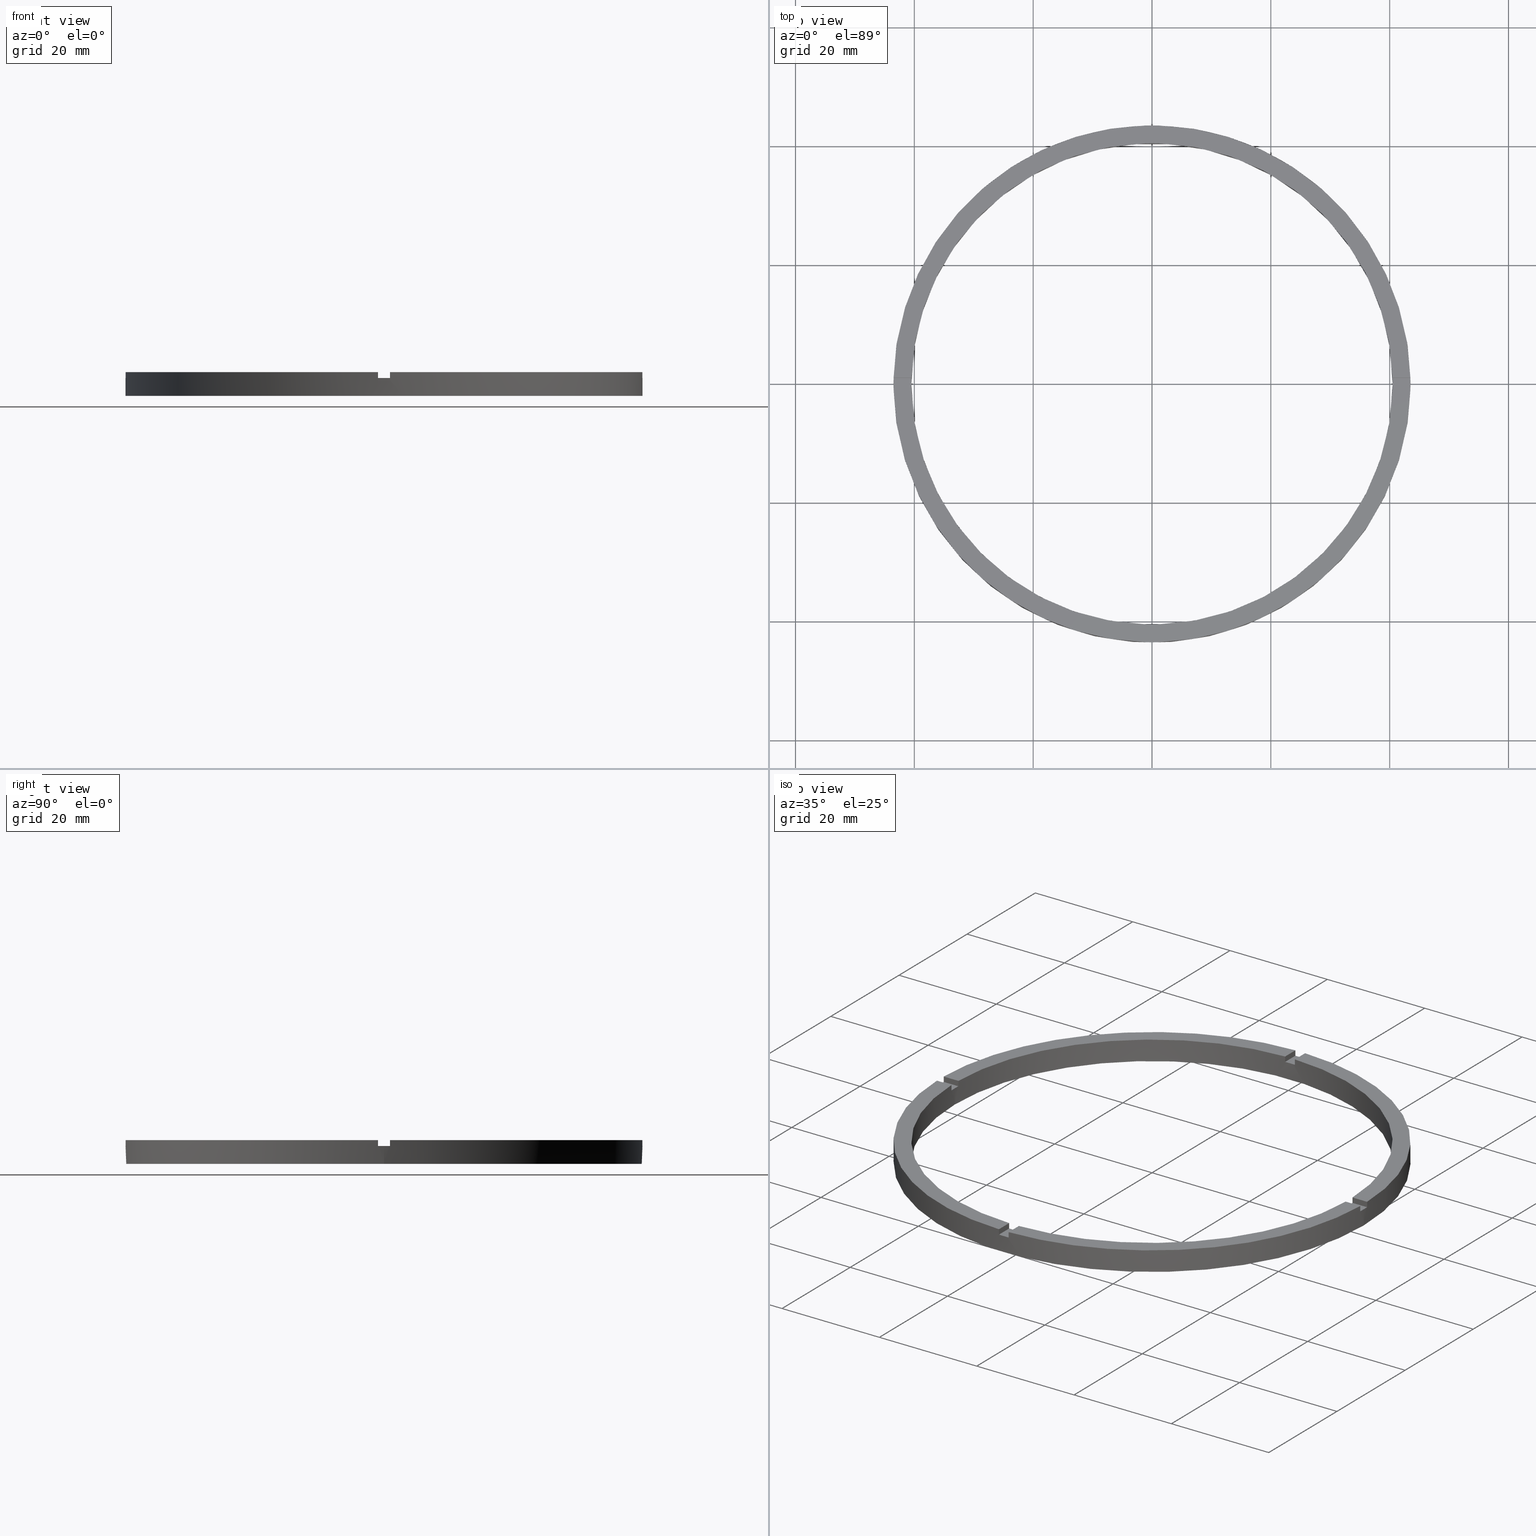
[diagram: canonical four-view strip — front | top / right | iso, engineering-drawing reading convention]
A machine part, canonical four-view strip (front | top / right | iso — engineering-drawing reading convention). The complete STEP part file that produces these views, byte-faithful:
ISO-10303-21;
HEADER;
FILE_DESCRIPTION (( 'STEP AP203' ),
    '1' );
FILE_NAME ('514179.step',
    '2024-12-26T02:45:15',
    ( 'MSI' ),
    ( '' ),
    'SwSTEP 2.0',
    'SolidWorks 2020',
    '' );
FILE_SCHEMA (( 'CONFIG_CONTROL_DESIGN' ));
ENDSEC;

DATA;
#1 = CC_DESIGN_APPROVAL ( #304, ( #555 ) ) ;
#2 = VERTEX_POINT ( 'NONE', #388 ) ;
#3 = ORIENTED_EDGE ( 'NONE', *, *, #82, .F. ) ;
#4 = LOCAL_TIME ( 10, 45, 15.00000000000000000, #266 ) ;
#5 = LOCAL_TIME ( 10, 45, 15.00000000000000000, #243 ) ;
#6 = VERTEX_POINT ( 'NONE', #143 ) ;
#7 = EDGE_CURVE ( 'NONE', #213, #342, #202, .T. ) ;
#8 = EDGE_CURVE ( 'NONE', #460, #293, #193, .T. ) ;
#9 = ORIENTED_EDGE ( 'NONE', *, *, #112, .F. ) ;
#10 = AXIS2_PLACEMENT_3D ( 'NONE', #207, #527, #290 ) ;
#11 = PERSON_AND_ORGANIZATION ( #338, #17 ) ;
#12 = ORIENTED_EDGE ( 'NONE', *, *, #82, .T. ) ;
#13 = CIRCLE ( 'NONE', #350, 40.50000000000000000 ) ;
#14 = DATE_AND_TIME ( #533, #5 ) ;
#15 = ORIENTED_EDGE ( 'NONE', *, *, #713, .T. ) ;
#16 = ORIENTED_EDGE ( 'NONE', *, *, #672, .F. ) ;
#17 = ORGANIZATION ( 'δָ��', 'δָ��', '' ) ;
#18 = PRODUCT_DEFINITION ( 'δ֪', '', #704, #421 ) ;
#19 = LINE ( 'NONE', #666, #296 ) ;
#20 = CALENDAR_DATE ( 2024, 26, 12 ) ;
#21 = EDGE_CURVE ( 'NONE', #297, #394, #732, .T. ) ;
#22 = FACE_OUTER_BOUND ( 'NONE', #509, .T. ) ;
#23 = LINE ( 'NONE', #88, #279 ) ;
#24 = ORIENTED_EDGE ( 'NONE', *, *, #254, .F. ) ;
#25 = EDGE_CURVE ( 'NONE', #331, #570, #468, .T. ) ;
#26 = CARTESIAN_POINT ( 'NONE',  ( 43.48850422812905947, -1.000000000000156319, 4.000000000000000000 ) ) ;
#27 = DIRECTION ( 'NONE',  ( 1.301042606982605074E-16, -1.000000000000000000, 0.000000000000000000 ) ) ;
#28 = LINE ( 'NONE', #451, #541 ) ;
#29 = ORIENTED_EDGE ( 'NONE', *, *, #283, .T. ) ;
#30 = LINE ( 'NONE', #151, #547 ) ;
#31 = VECTOR ( 'NONE', #110, 1000.000000000000000 ) ;
#32 = DIRECTION ( 'NONE',  ( 1.000000000000000000, 0.000000000000000000, 0.000000000000000000 ) ) ;
#33 = DIRECTION ( 'NONE',  ( 1.000000000000000000, 0.000000000000000000, -0.000000000000000000 ) ) ;
#34 = VECTOR ( 'NONE', #358, 1000.000000000000000 ) ;
#35 = ORIENTED_EDGE ( 'NONE', *, *, #722, .F. ) ;
#36 = EDGE_LOOP ( 'NONE', ( #754, #714, #237, #267 ) ) ;
#37 = ORIENTED_EDGE ( 'NONE', *, *, #123, .T. ) ;
#38 = LINE ( 'NONE', #408, #31 ) ;
#39 = APPROVAL_STATUS ( 'not_yet_approved' ) ;
#40 = ORIENTED_EDGE ( 'NONE', *, *, #159, .T. ) ;
#41 = FACE_OUTER_BOUND ( 'NONE', #768, .T. ) ;
#42 = CIRCLE ( 'NONE', #397, 40.50000000000000000 ) ;
#43 = ORIENTED_EDGE ( 'NONE', *, *, #747, .F. ) ;
#44 = LINE ( 'NONE', #294, #309 ) ;
#45 = VECTOR ( 'NONE', #404, 1000.000000000000000 ) ;
#46 = ORIENTED_EDGE ( 'NONE', *, *, #102, .T. ) ;
#47 = LINE ( 'NONE', #614, #303 ) ;
#48 = APPROVAL_STATUS ( 'not_yet_approved' ) ;
#49 = EDGE_CURVE ( 'NONE', #248, #311, #463, .T. ) ;
#50 = CARTESIAN_POINT ( 'NONE',  ( -1.000000000000159650, -33.50000000000017764, 3.000000000000000000 ) ) ;
#51 = LINE ( 'NONE', #149, #571 ) ;
#52 = LINE ( 'NONE', #623, #569 ) ;
#53 = ADVANCED_FACE ( 'NONE', ( #198 ), #552, .T. ) ;
#54 = CIRCLE ( 'NONE', #364, 43.50000000000000000 ) ;
#55 = LINE ( 'NONE', #407, #78 ) ;
#56 = CARTESIAN_POINT ( 'NONE',  ( 0.000000000000000000, 0.000000000000000000, 3.000000000000000000 ) ) ;
#57 = CC_DESIGN_PERSON_AND_ORGANIZATION_ASSIGNMENT ( #269, #433, ( #704 ) ) ;
#58 = ORIENTED_EDGE ( 'NONE', *, *, #676, .T. ) ;
#59 = VERTEX_POINT ( 'NONE', #438 ) ;
#60 = LINE ( 'NONE', #462, #598 ) ;
#61 = ORIENTED_EDGE ( 'NONE', *, *, #69, .F. ) ;
#62 = LINE ( 'NONE', #586, #314 ) ;
#63 = VECTOR ( 'NONE', #423, 1000.000000000000000 ) ;
#64 = CARTESIAN_POINT ( 'NONE',  ( -43.50000000000000000, 0.000000000000000000, 0.000000000000000000 ) ) ;
#65 = CARTESIAN_POINT ( 'NONE',  ( -40.50000000000000000, 0.000000000000000000, 4.000000000000000000 ) ) ;
#66 = EDGE_CURVE ( 'NONE', #324, #610, #42, .T. ) ;
#67 = ORIENTED_EDGE ( 'NONE', *, *, #283, .F. ) ;
#68 = FACE_BOUND ( 'NONE', #700, .T. ) ;
#69 = EDGE_CURVE ( 'NONE', #59, #343, #38, .T. ) ;
#70 =( NAMED_UNIT ( * ) PLANE_ANGLE_UNIT ( ) SI_UNIT ( $, .RADIAN. ) );
#71 = LINE ( 'NONE', #445, #74 ) ;
#72 = VECTOR ( 'NONE', #135, 1000.000000000000000 ) ;
#73 = DIRECTION ( 'NONE',  ( 0.000000000000000000, 0.000000000000000000, 1.000000000000000000 ) ) ;
#74 = VECTOR ( 'NONE', #738, 1000.000000000000000 ) ;
#75 = DIRECTION ( 'NONE',  ( 0.000000000000000000, 0.000000000000000000, 1.000000000000000000 ) ) ;
#76 = LINE ( 'NONE', #160, #596 ) ;
#77 = PLANE ( 'NONE',  #655 ) ;
#78 = VECTOR ( 'NONE', #302, 1000.000000000000000 ) ;
#79 = PERSON_AND_ORGANIZATION_ROLE ( 'classification_officer' ) ;
#80 = VECTOR ( 'NONE', #702, 1000.000000000000000 ) ;
#81 = VECTOR ( 'NONE', #674, 1000.000000000000000 ) ;
#82 = EDGE_CURVE ( 'NONE', #248, #213, #19, .T. ) ;
#83 = LINE ( 'NONE', #26, #81 ) ;
#84 = CIRCLE ( 'NONE', #425, 40.50000000000000000 ) ;
#85 = PLANE ( 'NONE',  #677 ) ;
#86 = LINE ( 'NONE', #532, #584 ) ;
#87 = CARTESIAN_POINT ( 'NONE',  ( 0.9999999999999740208, 43.48850422812906658, 4.000000000000000000 ) ) ;
#88 = CARTESIAN_POINT ( 'NONE',  ( -1.000000000000158762, -40.48765243873741326, 4.000000000000000000 ) ) ;
#89 = FACE_OUTER_BOUND ( 'NONE', #341, .T. ) ;
#90 = EDGE_LOOP ( 'NONE', ( #769, #229, #226, #492 ) ) ;
#91 = VERTEX_POINT ( 'NONE', #359 ) ;
#92 = ORIENTED_EDGE ( 'NONE', *, *, #549, .T. ) ;
#93 = DIRECTION ( 'NONE',  ( 1.000000000000000000, 0.000000000000000000, 0.000000000000000000 ) ) ;
#94 = ORIENTED_EDGE ( 'NONE', *, *, #499, .F. ) ;
#95 = AXIS2_PLACEMENT_3D ( 'NONE', #634, #733, #32 ) ;
#96 = AXIS2_PLACEMENT_3D ( 'NONE', #139, #698, #646 ) ;
#97 = EDGE_CURVE ( 'NONE', #91, #688, #573, .T. ) ;
#98 = DIRECTION ( 'NONE',  ( -0.000000000000000000, -0.000000000000000000, -1.000000000000000000 ) ) ;
#99 = ADVANCED_FACE ( 'NONE', ( #22 ), #510, .T. ) ;
#100 = APPROVAL ( #48, 'δָ��' ) ;
#101 = CARTESIAN_POINT ( 'NONE',  ( -40.48765243873742037, 0.9999999999999711342, 4.000000000000000000 ) ) ;
#102 = EDGE_CURVE ( 'NONE', #59, #454, #564, .T. ) ;
#103 = AXIS2_PLACEMENT_3D ( 'NONE', #546, #515, #161 ) ;
#104 = CARTESIAN_POINT ( 'NONE',  ( 0.9999999999998412381, -40.48765243873742037, 4.000000000000000000 ) ) ;
#105 = CARTESIAN_POINT ( 'NONE',  ( 0.000000000000000000, 0.000000000000000000, 4.000000000000000000 ) ) ;
#106 = CARTESIAN_POINT ( 'NONE',  ( -1.000000000000025979, 43.48850422812906658, 4.000000000000000000 ) ) ;
#107 = AXIS2_PLACEMENT_3D ( 'NONE', #199, #641, #286 ) ;
#108 = CARTESIAN_POINT ( 'NONE',  ( -43.48850422812906658, -1.000000000000029532, 3.000000000000000000 ) ) ;
#109 = MECHANICAL_CONTEXT ( 'NONE', #272, 'mechanical' ) ;
#110 = DIRECTION ( 'NONE',  ( 0.000000000000000000, 0.000000000000000000, 1.000000000000000000 ) ) ;
#111 = CARTESIAN_POINT ( 'NONE',  ( 33.49999999999998579, 0.9999999999998430145, 3.000000000000000000 ) ) ;
#112 = EDGE_CURVE ( 'NONE', #2, #465, #52, .T. ) ;
#113 = CARTESIAN_POINT ( 'NONE',  ( -40.48765243873742037, 0.9999999999999711342, 4.000000000000000000 ) ) ;
#114 = DIRECTION ( 'NONE',  ( -0.000000000000000000, -0.000000000000000000, -1.000000000000000000 ) ) ;
#115 = CARTESIAN_POINT ( 'NONE',  ( 0.000000000000000000, 0.000000000000000000, 4.000000000000000000 ) ) ;
#116 = CARTESIAN_POINT ( 'NONE',  ( -33.50000000000018474, 0.9999999999999724665, 3.000000000000000000 ) ) ;
#117 = AXIS2_PLACEMENT_3D ( 'NONE', #495, #355, #514 ) ;
#118 = DIRECTION ( 'NONE',  ( 1.000000000000000000, 0.000000000000000000, -0.000000000000000000 ) ) ;
#119 = EDGE_CURVE ( 'NONE', #681, #736, #51, .T. ) ;
#120 = ADVANCED_FACE ( 'NONE', ( #550 ), #662, .F. ) ;
#121 = CARTESIAN_POINT ( 'NONE',  ( -1.000000000000025979, 33.49999999999999289, 3.000000000000000000 ) ) ;
#122 = DIRECTION ( 'NONE',  ( 0.000000000000000000, 0.000000000000000000, 1.000000000000000000 ) ) ;
#123 = EDGE_CURVE ( 'NONE', #752, #420, #54, .T. ) ;
#124 = LINE ( 'NONE', #581, #126 ) ;
#125 = DIRECTION ( 'NONE',  ( 1.000000000000000000, 0.000000000000000000, 0.000000000000000000 ) ) ;
#126 = VECTOR ( 'NONE', #344, 1000.000000000000000 ) ;
#127 = AXIS2_PLACEMENT_3D ( 'NONE', #779, #289, #118 ) ;
#128 = PLANE ( 'NONE',  #127 ) ;
#129 = EDGE_CURVE ( 'NONE', #297, #554, #544, .T. ) ;
#130 = ADVANCED_FACE ( 'NONE', ( #277 ), #156, .T. ) ;
#131 = VERTEX_POINT ( 'NONE', #543 ) ;
#132 = AXIS2_PLACEMENT_3D ( 'NONE', #351, #383, #493 ) ;
#133 = EDGE_LOOP ( 'NONE', ( #215, #234, #770, #251 ) ) ;
#134 = EDGE_CURVE ( 'NONE', #752, #194, #28, .T. ) ;
#135 = DIRECTION ( 'NONE',  ( -1.000000000000000000, -6.505213034913025371E-17, -0.000000000000000000 ) ) ;
#136 = EDGE_CURVE ( 'NONE', #324, #155, #23, .T. ) ;
#137 = AXIS2_PLACEMENT_3D ( 'NONE', #624, #705, #374 ) ;
#138 = DIRECTION ( 'NONE',  ( 0.000000000000000000, 0.000000000000000000, 1.000000000000000000 ) ) ;
#139 = CARTESIAN_POINT ( 'NONE',  ( 0.000000000000000000, 0.000000000000000000, 4.000000000000000000 ) ) ;
#140 = ADVANCED_FACE ( 'NONE', ( #542 ), #312, .F. ) ;
#141 = DIRECTION ( 'NONE',  ( 0.000000000000000000, -0.000000000000000000, 1.000000000000000000 ) ) ;
#142 = CC_DESIGN_APPROVAL ( #100, ( #704 ) ) ;
#143 = CARTESIAN_POINT ( 'NONE',  ( 0.9999999999998412381, -40.48765243873742037, 4.000000000000000000 ) ) ;
#144 = EDGE_CURVE ( 'NONE', #394, #494, #592, .T. ) ;
#145 = APPROVAL_ROLE ( '' ) ;
#146 = DIRECTION ( 'NONE',  ( -1.000000000000000000, -1.951563910473907735E-16, 0.000000000000000000 ) ) ;
#147 = FACE_OUTER_BOUND ( 'NONE', #36, .T. ) ;
#148 = EDGE_LOOP ( 'NONE', ( #521, #259, #3, #513 ) ) ;
#149 = CARTESIAN_POINT ( 'NONE',  ( 43.50000000000000000, 5.327213576290986044E-15, 4.000000000000000000 ) ) ;
#150 = CARTESIAN_POINT ( 'NONE',  ( 43.50000000000000000, 5.327213576290986044E-15, 3.000000000000000000 ) ) ;
#151 = CARTESIAN_POINT ( 'NONE',  ( 40.48765243873741326, -1.000000000000156541, 4.000000000000000000 ) ) ;
#152 = PLANE ( 'NONE',  #268 ) ;
#153 = DIRECTION ( 'NONE',  ( 1.000000000000000000, 0.000000000000000000, 0.000000000000000000 ) ) ;
#154 = CARTESIAN_POINT ( 'NONE',  ( -33.50000000000018474, -1.000000000000027534, 3.000000000000000000 ) ) ;
#155 = VERTEX_POINT ( 'NONE', #372 ) ;
#156 = PLANE ( 'NONE',  #637 ) ;
#157 = VERTEX_POINT ( 'NONE', #411 ) ;
#158 = DIRECTION ( 'NONE',  ( -0.000000000000000000, -0.000000000000000000, -1.000000000000000000 ) ) ;
#159 = EDGE_CURVE ( 'NONE', #331, #291, #60, .T. ) ;
#160 = CARTESIAN_POINT ( 'NONE',  ( -43.48850422812906658, 0.9999999999999705791, 4.000000000000000000 ) ) ;
#161 = DIRECTION ( 'NONE',  ( 1.000000000000000000, 6.505213034913025371E-17, 0.000000000000000000 ) ) ;
#162 = CC_DESIGN_PERSON_AND_ORGANIZATION_ASSIGNMENT ( #11, #600, ( #558 ) ) ;
#163 = CARTESIAN_POINT ( 'NONE',  ( 0.000000000000000000, 0.000000000000000000, 4.000000000000000000 ) ) ;
#164 = AXIS2_PLACEMENT_3D ( 'NONE', #422, #587, #683 ) ;
#165 = AXIS2_PLACEMENT_3D ( 'NONE', #203, #288, #620 ) ;
#166 = ORIENTED_EDGE ( 'NONE', *, *, #205, .T. ) ;
#167 = ORIENTED_EDGE ( 'NONE', *, *, #426, .T. ) ;
#168 = VERTEX_POINT ( 'NONE', #665 ) ;
#169 = EDGE_CURVE ( 'NONE', #695, #420, #55, .T. ) ;
#170 = ADVANCED_FACE ( 'NONE', ( #332 ), #401, .F. ) ;
#171 = ORIENTED_EDGE ( 'NONE', *, *, #308, .F. ) ;
#172 = EDGE_LOOP ( 'NONE', ( #257, #588, #721, #37 ) ) ;
#173 = ORIENTED_EDGE ( 'NONE', *, *, #136, .F. ) ;
#174 = ORIENTED_EDGE ( 'NONE', *, *, #129, .T. ) ;
#175 = ADVANCED_FACE ( 'NONE', ( #579 ), #396, .F. ) ;
#176 = ORIENTED_EDGE ( 'NONE', *, *, #123, .F. ) ;
#177 = ORIENTED_EDGE ( 'NONE', *, *, #353, .T. ) ;
#178 = DIRECTION ( 'NONE',  ( -0.000000000000000000, -0.000000000000000000, -1.000000000000000000 ) ) ;
#179 = VECTOR ( 'NONE', #363, 1000.000000000000000 ) ;
#180 = PLANE ( 'NONE',  #236 ) ;
#181 = ORIENTED_EDGE ( 'NONE', *, *, #375, .T. ) ;
#182 = CIRCLE ( 'NONE', #551, 43.50000000000000000 ) ;
#183 = CARTESIAN_POINT ( 'NONE',  ( 0.9999999999999740208, 33.49999999999999289, 4.000000000000000000 ) ) ;
#184 = ORIENTED_EDGE ( 'NONE', *, *, #653, .T. ) ;
#185 = LINE ( 'NONE', #696, #179 ) ;
#186 = AXIS2_PLACEMENT_3D ( 'NONE', #502, #354, #280 ) ;
#187 = ORIENTED_EDGE ( 'NONE', *, *, #21, .F. ) ;
#188 = ORIENTED_EDGE ( 'NONE', *, *, #255, .T. ) ;
#189 = CARTESIAN_POINT ( 'NONE',  ( 0.000000000000000000, 0.000000000000000000, 3.000000000000000000 ) ) ;
#190 = CARTESIAN_POINT ( 'NONE',  ( -1.000000000000158318, -43.48850422812905947, 3.000000000000000000 ) ) ;
#191 = LINE ( 'NONE', #313, #725 ) ;
#192 = PLANE ( 'NONE',  #376 ) ;
#193 = LINE ( 'NONE', #577, #730 ) ;
#194 = VERTEX_POINT ( 'NONE', #108 ) ;
#195 =( GEOMETRIC_REPRESENTATION_CONTEXT ( 3 ) GLOBAL_UNCERTAINTY_ASSIGNED_CONTEXT ( ( #633 ) ) GLOBAL_UNIT_ASSIGNED_CONTEXT ( ( #607, #70, #613 ) ) REPRESENTATION_CONTEXT ( 'NONE', 'WORKASPACE' ) );
#196 = PLANE ( 'NONE',  #742 ) ;
#197 = ADVANCED_FACE ( 'NONE', ( #89 ), #152, .T. ) ;
#198 = FACE_OUTER_BOUND ( 'NONE', #503, .T. ) ;
#199 = CARTESIAN_POINT ( 'NONE',  ( -33.50000000000018474, 0.9999999999999724665, 3.000000000000000000 ) ) ;
#200 = DIRECTION ( 'NONE',  ( 0.000000000000000000, 0.000000000000000000, 1.000000000000000000 ) ) ;
#201 = DIRECTION ( 'NONE',  ( 0.000000000000000000, 0.000000000000000000, 1.000000000000000000 ) ) ;
#202 = LINE ( 'NONE', #428, #467 ) ;
#203 = CARTESIAN_POINT ( 'NONE',  ( 0.000000000000000000, 0.000000000000000000, 3.000000000000000000 ) ) ;
#204 = VECTOR ( 'NONE', #675, 1000.000000000000000 ) ;
#205 = EDGE_CURVE ( 'NONE', #454, #766, #595, .T. ) ;
#206 = EDGE_CURVE ( 'NONE', #498, #225, #62, .T. ) ;
#207 = CARTESIAN_POINT ( 'NONE',  ( 0.000000000000000000, 0.000000000000000000, 4.000000000000000000 ) ) ;
#208 = DIRECTION ( 'NONE',  ( 1.000000000000000000, 0.000000000000000000, 0.000000000000000000 ) ) ;
#209 = DIRECTION ( 'NONE',  ( -6.505213034913025371E-17, 1.000000000000000000, 0.000000000000000000 ) ) ;
#210 = APPROVAL_ROLE ( '' ) ;
#211 = ORIENTED_EDGE ( 'NONE', *, *, #487, .T. ) ;
#212 = CC_DESIGN_SECURITY_CLASSIFICATION ( #555, ( #704 ) ) ;
#213 = VERTEX_POINT ( 'NONE', #517 ) ;
#214 = CARTESIAN_POINT ( 'NONE',  ( -43.50000000000000000, 0.000000000000000000, 4.000000000000000000 ) ) ;
#215 = ORIENTED_EDGE ( 'NONE', *, *, #102, .F. ) ;
#216 = CARTESIAN_POINT ( 'NONE',  ( 0.000000000000000000, 0.000000000000000000, 4.000000000000000000 ) ) ;
#217 = ORIENTED_EDGE ( 'NONE', *, *, #129, .F. ) ;
#218 = AXIS2_PLACEMENT_3D ( 'NONE', #346, #529, #381 ) ;
#219 = ORIENTED_EDGE ( 'NONE', *, *, #654, .F. ) ;
#220 = ORIENTED_EDGE ( 'NONE', *, *, #66, .F. ) ;
#221 = CARTESIAN_POINT ( 'NONE',  ( 0.000000000000000000, 0.000000000000000000, 3.000000000000000000 ) ) ;
#222 = DIRECTION ( 'NONE',  ( -1.000000000000000000, 0.000000000000000000, 0.000000000000000000 ) ) ;
#223 = DIRECTION ( 'NONE',  ( -1.000000000000000000, -6.505213034913025371E-17, -0.000000000000000000 ) ) ;
#224 = ORIENTED_EDGE ( 'NONE', *, *, #664, .T. ) ;
#225 = VERTEX_POINT ( 'NONE', #432 ) ;
#226 = ORIENTED_EDGE ( 'NONE', *, *, #144, .T. ) ;
#227 = DIRECTION ( 'NONE',  ( -1.301042606982605074E-16, 1.000000000000000000, 0.000000000000000000 ) ) ;
#228 = ORIENTED_EDGE ( 'NONE', *, *, #630, .T. ) ;
#229 = ORIENTED_EDGE ( 'NONE', *, *, #21, .T. ) ;
#230 = DIRECTION ( 'NONE',  ( 1.000000000000000000, 0.000000000000000000, 0.000000000000000000 ) ) ;
#231 = ORIENTED_EDGE ( 'NONE', *, *, #713, .F. ) ;
#232 = ORIENTED_EDGE ( 'NONE', *, *, #134, .F. ) ;
#233 = ORIENTED_EDGE ( 'NONE', *, *, #653, .F. ) ;
#234 = ORIENTED_EDGE ( 'NONE', *, *, #69, .T. ) ;
#235 = DATE_AND_TIME ( #20, #538 ) ;
#236 = AXIS2_PLACEMENT_3D ( 'NONE', #384, #735, #33 ) ;
#237 = ORIENTED_EDGE ( 'NONE', *, *, #393, .T. ) ;
#238 = DIRECTION ( 'NONE',  ( 1.000000000000000000, 0.000000000000000000, 0.000000000000000000 ) ) ;
#239 = ADVANCED_FACE ( 'NONE', ( #583 ), #604, .F. ) ;
#240 = PERSON_AND_ORGANIZATION ( #338, #17 ) ;
#241 = CLOSED_SHELL ( 'NONE', ( #719, #562, #336, #379, #782, #130, #671, #53, #140, #442, #175, #197, #385, #640, #476, #120, #365, #99, #239, #170, #663 ) ) ;
#242 = ORIENTED_EDGE ( 'NONE', *, *, #712, .T. ) ;
#243 = COORDINATED_UNIVERSAL_TIME_OFFSET ( 8, 0, .AHEAD. ) ;
#244 = EDGE_LOOP ( 'NONE', ( #12, #274, #43, #316 ) ) ;
#245 = ORIENTED_EDGE ( 'NONE', *, *, #574, .T. ) ;
#246 = PERSON_AND_ORGANIZATION ( #338, #17 ) ;
#247 = APPROVAL_PERSON_ORGANIZATION ( #240, #100, #145 ) ;
#248 = VERTEX_POINT ( 'NONE', #693 ) ;
#249 = LOCAL_TIME ( 10, 45, 15.00000000000000000, #505 ) ;
#250 = PERSON_AND_ORGANIZATION ( #338, #17 ) ;
#251 = ORIENTED_EDGE ( 'NONE', *, *, #255, .F. ) ;
#252 = EDGE_CURVE ( 'NONE', #752, #460, #334, .T. ) ;
#253 = ORIENTED_EDGE ( 'NONE', *, *, #49, .T. ) ;
#254 = EDGE_CURVE ( 'NONE', #554, #688, #602, .T. ) ;
#255 = EDGE_CURVE ( 'NONE', #454, #523, #71, .T. ) ;
#256 = ORIENTED_EDGE ( 'NONE', *, *, #630, .F. ) ;
#257 = ORIENTED_EDGE ( 'NONE', *, *, #393, .F. ) ;
#258 = PERSON_AND_ORGANIZATION ( #338, #17 ) ;
#259 = ORIENTED_EDGE ( 'NONE', *, *, #406, .F. ) ;
#260 = DATE_TIME_ROLE ( 'classification_date' ) ;
#261 = DATE_AND_TIME ( #773, #249 ) ;
#262 = EDGE_LOOP ( 'NONE', ( #475, #184, #231, #703 ) ) ;
#263 = CARTESIAN_POINT ( 'NONE',  ( 0.000000000000000000, 0.000000000000000000, 3.000000000000000000 ) ) ;
#264 = APPROVAL_PERSON_ORGANIZATION ( #246, #673, #210 ) ;
#265 = ORIENTED_EDGE ( 'NONE', *, *, #574, .F. ) ;
#266 = COORDINATED_UNIVERSAL_TIME_OFFSET ( 8, 0, .AHEAD. ) ;
#267 = ORIENTED_EDGE ( 'NONE', *, *, #169, .F. ) ;
#268 = AXIS2_PLACEMENT_3D ( 'NONE', #189, #138, #278 ) ;
#269 = PERSON_AND_ORGANIZATION ( #338, #17 ) ;
#270 = ORIENTED_EDGE ( 'NONE', *, *, #672, .T. ) ;
#271 = EDGE_CURVE ( 'NONE', #248, #523, #590, .T. ) ;
#272 = APPLICATION_CONTEXT ( 'configuration controlled 3d designs of mechanical parts and assemblies' ) ;
#273 = DATE_AND_TIME ( #491, #776 ) ;
#274 = ORIENTED_EDGE ( 'NONE', *, *, #7, .T. ) ;
#275 = CALENDAR_DATE ( 2024, 26, 12 ) ;
#276 = LINE ( 'NONE', #121, #34 ) ;
#277 = FACE_OUTER_BOUND ( 'NONE', #172, .T. ) ;
#278 = DIRECTION ( 'NONE',  ( 1.000000000000000000, 0.000000000000000000, -0.000000000000000000 ) ) ;
#279 = VECTOR ( 'NONE', #122, 1000.000000000000000 ) ;
#280 = DIRECTION ( 'NONE',  ( -1.000000000000000000, 0.000000000000000000, 0.000000000000000000 ) ) ;
#281 = AXIS2_PLACEMENT_3D ( 'NONE', #352, #520, #762 ) ;
#282 = CARTESIAN_POINT ( 'NONE',  ( 0.9999999999999740208, 43.48850422812906658, 3.000000000000000000 ) ) ;
#283 = EDGE_CURVE ( 'NONE', #682, #494, #328, .T. ) ;
#284 = DIRECTION ( 'NONE',  ( -0.000000000000000000, -0.000000000000000000, -1.000000000000000000 ) ) ;
#285 = CYLINDRICAL_SURFACE ( 'NONE', #10, 43.50000000000000000 ) ;
#286 = DIRECTION ( 'NONE',  ( -1.000000000000000000, -1.951563910473907735E-16, 0.000000000000000000 ) ) ;
#287 = CARTESIAN_POINT ( 'NONE',  ( -43.48850422812906658, -1.000000000000029532, 4.000000000000000000 ) ) ;
#288 = DIRECTION ( 'NONE',  ( 0.000000000000000000, 0.000000000000000000, 1.000000000000000000 ) ) ;
#289 = DIRECTION ( 'NONE',  ( 0.000000000000000000, 0.000000000000000000, 1.000000000000000000 ) ) ;
#290 = DIRECTION ( 'NONE',  ( -1.000000000000000000, 0.000000000000000000, 0.000000000000000000 ) ) ;
#291 = VERTEX_POINT ( 'NONE', #322 ) ;
#292 = PERSON_AND_ORGANIZATION_ROLE ( 'creator' ) ;
#293 = VERTEX_POINT ( 'NONE', #377 ) ;
#294 = CARTESIAN_POINT ( 'NONE',  ( 33.49999999999998579, -1.000000000000156986, 4.000000000000000000 ) ) ;
#295 = ORIENTED_EDGE ( 'NONE', *, *, #701, .F. ) ;
#296 = VECTOR ( 'NONE', #223, 1000.000000000000000 ) ;
#297 = VERTEX_POINT ( 'NONE', #414 ) ;
#298 = CIRCLE ( 'NONE', #488, 43.50000000000000000 ) ;
#299 = VECTOR ( 'NONE', #362, 1000.000000000000000 ) ;
#300 = DIRECTION ( 'NONE',  ( 1.000000000000000000, 0.000000000000000000, -0.000000000000000000 ) ) ;
#301 = VECTOR ( 'NONE', #356, 1000.000000000000000 ) ;
#302 = DIRECTION ( 'NONE',  ( 0.000000000000000000, 0.000000000000000000, 1.000000000000000000 ) ) ;
#303 = VECTOR ( 'NONE', #647, 1000.000000000000000 ) ;
#304 = APPROVAL ( #347, 'δָ��' ) ;
#305 = CARTESIAN_POINT ( 'NONE',  ( 0.000000000000000000, 0.000000000000000000, 4.000000000000000000 ) ) ;
#306 = VECTOR ( 'NONE', #650, 1000.000000000000000 ) ;
#307 = CARTESIAN_POINT ( 'NONE',  ( 40.48765243873741326, -1.000000000000156541, 3.000000000000000000 ) ) ;
#308 = EDGE_CURVE ( 'NONE', #775, #342, #84, .T. ) ;
#309 = VECTOR ( 'NONE', #692, 1000.000000000000000 ) ;
#310 = CARTESIAN_POINT ( 'NONE',  ( -33.50000000000018474, 0.9999999999999724665, 4.000000000000000000 ) ) ;
#311 = VERTEX_POINT ( 'NONE', #628 ) ;
#312 = CYLINDRICAL_SURFACE ( 'NONE', #618, 40.50000000000000000 ) ;
#313 = CARTESIAN_POINT ( 'NONE',  ( -1.000000000000159650, -33.50000000000017764, 4.000000000000000000 ) ) ;
#314 = VECTOR ( 'NONE', #638, 1000.000000000000000 ) ;
#315 = DIRECTION ( 'NONE',  ( 0.000000000000000000, 0.000000000000000000, 1.000000000000000000 ) ) ;
#316 = ORIENTED_EDGE ( 'NONE', *, *, #49, .F. ) ;
#317 = LINE ( 'NONE', #104, #335 ) ;
#318 = VECTOR ( 'NONE', #114, 1000.000000000000000 ) ;
#319 = CYLINDRICAL_SURFACE ( 'NONE', #186, 40.50000000000000000 ) ;
#320 = VECTOR ( 'NONE', #758, 1000.000000000000000 ) ;
#321 = CIRCLE ( 'NONE', #387, 40.50000000000000000 ) ;
#322 = CARTESIAN_POINT ( 'NONE',  ( 0.9999999999998416822, -43.48850422812906658, 3.000000000000000000 ) ) ;
#323 = CIRCLE ( 'NONE', #670, 43.50000000000000000 ) ;
#324 = VERTEX_POINT ( 'NONE', #418 ) ;
#325 = AXIS2_PLACEMENT_3D ( 'NONE', #437, #490, #208 ) ;
#326 = ORIENTED_EDGE ( 'NONE', *, *, #426, .F. ) ;
#327 = FACE_OUTER_BOUND ( 'NONE', #726, .T. ) ;
#328 = CIRCLE ( 'NONE', #765, 43.50000000000000000 ) ;
#329 = CIRCLE ( 'NONE', #132, 40.50000000000000000 ) ;
#330 = DIRECTION ( 'NONE',  ( 0.000000000000000000, 0.000000000000000000, 1.000000000000000000 ) ) ;
#331 = VERTEX_POINT ( 'NONE', #718 ) ;
#332 = FACE_OUTER_BOUND ( 'NONE', #133, .T. ) ;
#333 = FACE_OUTER_BOUND ( 'NONE', #565, .T. ) ;
#334 = LINE ( 'NONE', #366, #320 ) ;
#335 = VECTOR ( 'NONE', #98, 1000.000000000000000 ) ;
#336 = ADVANCED_FACE ( 'NONE', ( #337 ), #128, .T. ) ;
#337 = FACE_OUTER_BOUND ( 'NONE', #435, .T. ) ;
#338 = PERSON ( 'δָ��', 'δָ��', 'δָ��', ('δָ��'), ('δָ��'), ('δָ��') ) ;
#339 = EDGE_LOOP ( 'NONE', ( #477, #177, #16, #24, #528, #472, #575, #173, #572, #233, #242, #594 ) ) ;
#340 = ORIENTED_EDGE ( 'NONE', *, *, #455, .F. ) ;
#341 = EDGE_LOOP ( 'NONE', ( #489, #723, #228, #778, #217, #750 ) ) ;
#342 = VERTEX_POINT ( 'NONE', #615 ) ;
#343 = VERTEX_POINT ( 'NONE', #537 ) ;
#344 = DIRECTION ( 'NONE',  ( 1.000000000000000000, 1.951563910473907735E-16, -0.000000000000000000 ) ) ;
#345 = CC_DESIGN_DATE_AND_TIME_ASSIGNMENT ( #522, #744, ( #18 ) ) ;
#346 = CARTESIAN_POINT ( 'NONE',  ( 0.9999999999999740208, 33.49999999999999289, 3.000000000000000000 ) ) ;
#347 = APPROVAL_STATUS ( 'not_yet_approved' ) ;
#348 = EDGE_CURVE ( 'NONE', #157, #501, #716, .T. ) ;
#349 = CARTESIAN_POINT ( 'NONE',  ( 0.000000000000000000, 0.000000000000000000, 3.000000000000000000 ) ) ;
#350 = AXIS2_PLACEMENT_3D ( 'NONE', #621, #771, #410 ) ;
#351 = CARTESIAN_POINT ( 'NONE',  ( 0.000000000000000000, 0.000000000000000000, 4.000000000000000000 ) ) ;
#352 = CARTESIAN_POINT ( 'NONE',  ( 0.000000000000000000, 0.000000000000000000, 4.000000000000000000 ) ) ;
#353 = EDGE_CURVE ( 'NONE', #775, #91, #185, .T. ) ;
#354 = DIRECTION ( 'NONE',  ( -0.000000000000000000, -0.000000000000000000, -1.000000000000000000 ) ) ;
#356 = DIRECTION ( 'NONE',  ( -0.000000000000000000, -1.000000000000000000, -0.000000000000000000 ) ) ;
#355 = DIRECTION ( 'NONE',  ( 0.000000000000000000, 0.000000000000000000, 1.000000000000000000 ) ) ;
#357 = DIRECTION ( 'NONE',  ( 1.301042606982605074E-16, -1.000000000000000000, 0.000000000000000000 ) ) ;
#358 = DIRECTION ( 'NONE',  ( -0.000000000000000000, -1.000000000000000000, -0.000000000000000000 ) ) ;
#359 = CARTESIAN_POINT ( 'NONE',  ( 40.50000000000000000, 4.959819536546780600E-15, 0.000000000000000000 ) ) ;
#360 = DIRECTION ( 'NONE',  ( 1.000000000000000000, 0.000000000000000000, 0.000000000000000000 ) ) ;
#361 = AXIS2_PLACEMENT_3D ( 'NONE', #50, #728, #27 ) ;
#362 = DIRECTION ( 'NONE',  ( -0.000000000000000000, -0.000000000000000000, -1.000000000000000000 ) ) ;
#363 = DIRECTION ( 'NONE',  ( -0.000000000000000000, -0.000000000000000000, -1.000000000000000000 ) ) ;
#364 = AXIS2_PLACEMENT_3D ( 'NONE', #709, #645, #93 ) ;
#365 = ADVANCED_FACE ( 'NONE', ( #449 ), #443, .F. ) ;
#366 = CARTESIAN_POINT ( 'NONE',  ( -33.50000000000018474, -1.000000000000027534, 4.000000000000000000 ) ) ;
#367 = DIRECTION ( 'NONE',  ( 0.000000000000000000, 0.000000000000000000, 1.000000000000000000 ) ) ;
#368 = CARTESIAN_POINT ( 'NONE',  ( 40.50000000000000000, 4.959819536546780600E-15, 3.000000000000000000 ) ) ;
#369 = CARTESIAN_POINT ( 'NONE',  ( 0.000000000000000000, 0.000000000000000000, 3.000000000000000000 ) ) ;
#370 = ADVANCED_BREP_SHAPE_REPRESENTATION ( '514179', ( #380, #680 ), #195 ) ;
#371 = DIRECTION ( 'NONE',  ( 1.000000000000000000, 0.000000000000000000, 0.000000000000000000 ) ) ;
#372 = CARTESIAN_POINT ( 'NONE',  ( -1.000000000000158762, -40.48765243873741326, 4.000000000000000000 ) ) ;
#373 = DIRECTION ( 'NONE',  ( 1.000000000000000000, 0.000000000000000000, -0.000000000000000000 ) ) ;
#374 = DIRECTION ( 'NONE',  ( 1.000000000000000000, 0.000000000000000000, 0.000000000000000000 ) ) ;
#375 = EDGE_CURVE ( 'NONE', #695, #291, #182, .T. ) ;
#376 = AXIS2_PLACEMENT_3D ( 'NONE', #154, #441, #753 ) ;
#377 = CARTESIAN_POINT ( 'NONE',  ( -40.48765243873741326, -1.000000000000028866, 3.000000000000000000 ) ) ;
#378 = CC_DESIGN_PERSON_AND_ORGANIZATION_ASSIGNMENT ( #525, #79, ( #555 ) ) ;
#379 = ADVANCED_FACE ( 'NONE', ( #724 ), #196, .T. ) ;
#380 = MANIFOLD_SOLID_BREP ( '�г�-����1', #241 ) ;
#381 = DIRECTION ( 'NONE',  ( 0.000000000000000000, 0.000000000000000000, -1.000000000000000000 ) ) ;
#382 = APPROVAL_ROLE ( '' ) ;
#383 = DIRECTION ( 'NONE',  ( 0.000000000000000000, 0.000000000000000000, 1.000000000000000000 ) ) ;
#384 = CARTESIAN_POINT ( 'NONE',  ( 0.000000000000000000, 0.000000000000000000, 0.000000000000000000 ) ) ;
#385 = ADVANCED_FACE ( 'NONE', ( #453 ), #85, .F. ) ;
#386 = CIRCLE ( 'NONE', #667, 43.50000000000000000 ) ;
#387 = AXIS2_PLACEMENT_3D ( 'NONE', #115, #643, #392 ) ;
#388 = CARTESIAN_POINT ( 'NONE',  ( -1.000000000000025979, 40.48765243873741326, 4.000000000000000000 ) ) ;
#389 = CARTESIAN_POINT ( 'NONE',  ( 0.000000000000000000, 0.000000000000000000, 3.000000000000000000 ) ) ;
#390 = DIRECTION ( 'NONE',  ( 0.000000000000000000, 0.000000000000000000, 1.000000000000000000 ) ) ;
#391 = DIRECTION ( 'NONE',  ( -0.000000000000000000, 0.000000000000000000, 1.000000000000000000 ) ) ;
#392 = DIRECTION ( 'NONE',  ( 1.000000000000000000, 0.000000000000000000, 0.000000000000000000 ) ) ;
#393 = EDGE_CURVE ( 'NONE', #155, #420, #191, .T. ) ;
#394 = VERTEX_POINT ( 'NONE', #113 ) ;
#395 = DIRECTION ( 'NONE',  ( -0.000000000000000000, 0.000000000000000000, 1.000000000000000000 ) ) ;
#396 = PLANE ( 'NONE',  #107 ) ;
#397 = AXIS2_PLACEMENT_3D ( 'NONE', #369, #391, #230 ) ;
#398 = EDGE_CURVE ( 'NONE', #736, #501, #461, .T. ) ;
#399 = CARTESIAN_POINT ( 'NONE',  ( -1.000000000000025979, 43.48850422812906658, 3.000000000000000000 ) ) ;
#400 = CARTESIAN_POINT ( 'NONE',  ( -40.48765243873741326, -1.000000000000028866, 4.000000000000000000 ) ) ;
#401 = PLANE ( 'NONE',  #218 ) ;
#402 = DIRECTION ( 'NONE',  ( 1.000000000000000000, 0.000000000000000000, 0.000000000000000000 ) ) ;
#403 = DIRECTION ( 'NONE',  ( 1.000000000000000000, 0.000000000000000000, 0.000000000000000000 ) ) ;
#404 = DIRECTION ( 'NONE',  ( 1.301042606982605074E-16, -1.000000000000000000, 0.000000000000000000 ) ) ;
#405 = AXIS2_PLACEMENT_3D ( 'NONE', #781, #200, #373 ) ;
#406 = EDGE_CURVE ( 'NONE', #213, #343, #464, .T. ) ;
#407 = CARTESIAN_POINT ( 'NONE',  ( -1.000000000000158318, -43.48850422812905947, 4.000000000000000000 ) ) ;
#408 = CARTESIAN_POINT ( 'NONE',  ( 0.9999999999999740208, 40.48765243873742037, 4.000000000000000000 ) ) ;
#409 = CARTESIAN_POINT ( 'NONE',  ( 0.9999999999998404610, -33.50000000000017764, 3.000000000000000000 ) ) ;
#410 = DIRECTION ( 'NONE',  ( 1.000000000000000000, 0.000000000000000000, 0.000000000000000000 ) ) ;
#411 = CARTESIAN_POINT ( 'NONE',  ( -43.50000000000000000, 0.000000000000000000, 3.000000000000000000 ) ) ;
#412 = CARTESIAN_POINT ( 'NONE',  ( 33.49999999999998579, 0.9999999999998430145, 3.000000000000000000 ) ) ;
#413 = EDGE_CURVE ( 'NONE', #682, #2, #731, .T. ) ;
#414 = CARTESIAN_POINT ( 'NONE',  ( -40.48765243873742037, 0.9999999999999711342, 3.000000000000000000 ) ) ;
#415 = EDGE_CURVE ( 'NONE', #331, #6, #47, .T. ) ;
#416 = EDGE_LOOP ( 'NONE', ( #526, #92, #167, #219 ) ) ;
#417 = EDGE_LOOP ( 'NONE', ( #478, #760, #256, #232 ) ) ;
#418 = CARTESIAN_POINT ( 'NONE',  ( -1.000000000000158762, -40.48765243873741326, 3.000000000000000000 ) ) ;
#419 = EDGE_CURVE ( 'NONE', #225, #681, #298, .T. ) ;
#420 = VERTEX_POINT ( 'NONE', #652 ) ;
#421 = DESIGN_CONTEXT ( 'detailed design', #740, 'design' ) ;
#422 = CARTESIAN_POINT ( 'NONE',  ( 0.000000000000000000, 0.000000000000000000, 4.000000000000000000 ) ) ;
#423 = DIRECTION ( 'NONE',  ( 0.000000000000000000, 1.000000000000000000, 0.000000000000000000 ) ) ;
#424 = ORIENTED_EDGE ( 'NONE', *, *, #119, .T. ) ;
#425 = AXIS2_PLACEMENT_3D ( 'NONE', #553, #669, #238 ) ;
#426 = EDGE_CURVE ( 'NONE', #131, #570, #44, .T. ) ;
#427 = ORIENTED_EDGE ( 'NONE', *, *, #375, .F. ) ;
#428 = CARTESIAN_POINT ( 'NONE',  ( 40.48765243873742037, 0.9999999999998434586, 4.000000000000000000 ) ) ;
#429 = DIRECTION ( 'NONE',  ( 1.000000000000000000, 0.000000000000000000, 0.000000000000000000 ) ) ;
#430 = ORIENTED_EDGE ( 'NONE', *, *, #25, .F. ) ;
#431 = ORIENTED_EDGE ( 'NONE', *, *, #660, .F. ) ;
#432 = CARTESIAN_POINT ( 'NONE',  ( 43.48850422812905947, -1.000000000000156319, 3.000000000000000000 ) ) ;
#433 = PERSON_AND_ORGANIZATION_ROLE ( 'creator' ) ;
#434 = EDGE_CURVE ( 'NONE', #297, #168, #563, .T. ) ;
#435 = EDGE_LOOP ( 'NONE', ( #755, #29, #436, #483 ) ) ;
#436 = ORIENTED_EDGE ( 'NONE', *, *, #144, .F. ) ;
#437 = CARTESIAN_POINT ( 'NONE',  ( 0.000000000000000000, 0.000000000000000000, 3.000000000000000000 ) ) ;
#438 = CARTESIAN_POINT ( 'NONE',  ( 0.9999999999999740208, 40.48765243873742037, 3.000000000000000000 ) ) ;
#439 = PLANE ( 'NONE',  #281 ) ;
#440 = CC_DESIGN_PERSON_AND_ORGANIZATION_ASSIGNMENT ( #258, #292, ( #18 ) ) ;
#441 = DIRECTION ( 'NONE',  ( 1.951563910473907735E-16, -1.000000000000000000, 0.000000000000000000 ) ) ;
#442 = ADVANCED_FACE ( 'NONE', ( #567 ), #192, .F. ) ;
#443 = PLANE ( 'NONE',  #103 ) ;
#444 = CARTESIAN_POINT ( 'NONE',  ( -43.48850422812906658, 0.9999999999999705791, 4.000000000000000000 ) ) ;
#445 = CARTESIAN_POINT ( 'NONE',  ( 0.9999999999999740208, 43.48850422812906658, 4.000000000000000000 ) ) ;
#446 = EDGE_CURVE ( 'NONE', #554, #293, #556, .T. ) ;
#447 = AXIS2_PLACEMENT_3D ( 'NONE', #741, #390, #429 ) ;
#448 = APPLICATION_PROTOCOL_DEFINITION ( 'international standard', 'config_control_design', 1994, #272 ) ;
#449 = FACE_OUTER_BOUND ( 'NONE', #416, .T. ) ;
#450 = CARTESIAN_POINT ( 'NONE',  ( 0.000000000000000000, 0.000000000000000000, 3.000000000000000000 ) ) ;
#451 = CARTESIAN_POINT ( 'NONE',  ( -43.48850422812906658, -1.000000000000029532, 4.000000000000000000 ) ) ;
#452 = PRODUCT_RELATED_PRODUCT_CATEGORY ( 'detail', '', ( #558 ) ) ;
#453 = FACE_OUTER_BOUND ( 'NONE', #262, .T. ) ;
#454 = VERTEX_POINT ( 'NONE', #282 ) ;
#455 = EDGE_CURVE ( 'NONE', #682, #766, #557, .T. ) ;
#456 = ORIENTED_EDGE ( 'NONE', *, *, #271, .F. ) ;
#457 = VECTOR ( 'NONE', #284, 1000.000000000000000 ) ;
#458 = DIRECTION ( 'NONE',  ( 1.000000000000000000, 1.301042606982605074E-16, 0.000000000000000000 ) ) ;
#459 = CARTESIAN_POINT ( 'NONE',  ( 0.000000000000000000, 0.000000000000000000, 3.000000000000000000 ) ) ;
#460 = VERTEX_POINT ( 'NONE', #400 ) ;
#461 = CIRCLE ( 'NONE', #137, 43.50000000000000000 ) ;
#462 = CARTESIAN_POINT ( 'NONE',  ( 0.9999999999998416822, -43.48850422812906658, 4.000000000000000000 ) ) ;
#463 = LINE ( 'NONE', #642, #727 ) ;
#464 = CIRCLE ( 'NONE', #631, 40.50000000000000000 ) ;
#465 = VERTEX_POINT ( 'NONE', #524 ) ;
#466 = CARTESIAN_POINT ( 'NONE',  ( 0.000000000000000000, 0.000000000000000000, 4.000000000000000000 ) ) ;
#467 = VECTOR ( 'NONE', #482, 1000.000000000000000 ) ;
#468 = CIRCLE ( 'NONE', #485, 43.50000000000000000 ) ;
#469 = ORIENTED_EDGE ( 'NONE', *, *, #348, .T. ) ;
#470 = AXIS2_PLACEMENT_3D ( 'NONE', #412, #209, #616 ) ;
#471 = DIRECTION ( 'NONE',  ( 1.000000000000000000, 0.000000000000000000, 0.000000000000000000 ) ) ;
#472 = ORIENTED_EDGE ( 'NONE', *, *, #8, .F. ) ;
#473 = DIRECTION ( 'NONE',  ( 0.000000000000000000, 0.000000000000000000, 1.000000000000000000 ) ) ;
#474 = ORIENTED_EDGE ( 'NONE', *, *, #7, .F. ) ;
#475 = ORIENTED_EDGE ( 'NONE', *, *, #415, .T. ) ;
#476 = ADVANCED_FACE ( 'NONE', ( #41 ), #77, .T. ) ;
#477 = ORIENTED_EDGE ( 'NONE', *, *, #499, .T. ) ;
#478 = ORIENTED_EDGE ( 'NONE', *, *, #252, .T. ) ;
#479 = PRODUCT_DEFINITION_SHAPE ( 'NONE', 'NONE',  #18 ) ;
#480 = EDGE_LOOP ( 'NONE', ( #326, #536, #743, #774 ) ) ;
#481 = ORIENTED_EDGE ( 'NONE', *, *, #169, .T. ) ;
#482 = DIRECTION ( 'NONE',  ( -0.000000000000000000, -0.000000000000000000, -1.000000000000000000 ) ) ;
#483 = ORIENTED_EDGE ( 'NONE', *, *, #664, .F. ) ;
#484 = EDGE_LOOP ( 'NONE', ( #608, #606, #707, #340 ) ) ;
#485 = AXIS2_PLACEMENT_3D ( 'NONE', #734, #597, #639 ) ;
#486 = ORIENTED_EDGE ( 'NONE', *, *, #722, .T. ) ;
#487 = EDGE_CURVE ( 'NONE', #324, #695, #559, .T. ) ;
#488 = AXIS2_PLACEMENT_3D ( 'NONE', #450, #658, #403 ) ;
#489 = ORIENTED_EDGE ( 'NONE', *, *, #619, .T. ) ;
#490 = DIRECTION ( 'NONE',  ( 0.000000000000000000, -0.000000000000000000, 1.000000000000000000 ) ) ;
#491 = CALENDAR_DATE ( 2024, 26, 12 ) ;
#492 = ORIENTED_EDGE ( 'NONE', *, *, #676, .F. ) ;
#493 = DIRECTION ( 'NONE',  ( 1.000000000000000000, 0.000000000000000000, 0.000000000000000000 ) ) ;
#494 = VERTEX_POINT ( 'NONE', #444 ) ;
#495 = CARTESIAN_POINT ( 'NONE',  ( 0.000000000000000000, 0.000000000000000000, 0.000000000000000000 ) ) ;
#496 = ORIENTED_EDGE ( 'NONE', *, *, #97, .T. ) ;
#497 = CC_DESIGN_DATE_AND_TIME_ASSIGNMENT ( #273, #260, ( #555 ) ) ;
#498 = VERTEX_POINT ( 'NONE', #307 ) ;
#499 = EDGE_CURVE ( 'NONE', #498, #775, #13, .T. ) ;
#500 = PERSON_AND_ORGANIZATION ( #338, #17 ) ;
#501 = VERTEX_POINT ( 'NONE', #64 ) ;
#502 = CARTESIAN_POINT ( 'NONE',  ( 0.000000000000000000, 0.000000000000000000, 4.000000000000000000 ) ) ;
#503 = EDGE_LOOP ( 'NONE', ( #717, #763, #539, #430, #40, #427, #481, #176, #711, #295, #469, #245 ) ) ;
#504 = CARTESIAN_POINT ( 'NONE',  ( 0.9999999999998412381, -40.48765243873742037, 3.000000000000000000 ) ) ;
#505 = COORDINATED_UNIVERSAL_TIME_OFFSET ( 8, 0, .AHEAD. ) ;
#506 = EDGE_LOOP ( 'NONE', ( #748, #531, #474, #516, #61, #507, #9, #224, #187, #174, #737, #578 ) ) ;
#507 = ORIENTED_EDGE ( 'NONE', *, *, #660, .T. ) ;
#508 = APPROVAL_DATE_TIME ( #14, #100 ) ;
#509 = EDGE_LOOP ( 'NONE', ( #603, #486, #757, #171, #94, #761 ) ) ;
#510 = PLANE ( 'NONE',  #405 ) ;
#511 = APPROVAL_PERSON_ORGANIZATION ( #250, #304, #382 ) ;
#512 = PERSON_AND_ORGANIZATION_ROLE ( 'design_supplier' ) ;
#513 = ORIENTED_EDGE ( 'NONE', *, *, #271, .T. ) ;
#514 = DIRECTION ( 'NONE',  ( 1.000000000000000000, 0.000000000000000000, 0.000000000000000000 ) ) ;
#515 = DIRECTION ( 'NONE',  ( 6.505213034913025371E-17, -1.000000000000000000, 0.000000000000000000 ) ) ;
#516 = ORIENTED_EDGE ( 'NONE', *, *, #406, .T. ) ;
#517 = CARTESIAN_POINT ( 'NONE',  ( 40.48765243873742037, 0.9999999999998434586, 4.000000000000000000 ) ) ;
#518 = DIRECTION ( 'NONE',  ( 1.000000000000000000, 0.000000000000000000, 0.000000000000000000 ) ) ;
#519 = ORIENTED_EDGE ( 'NONE', *, *, #398, .F. ) ;
#520 = DIRECTION ( 'NONE',  ( 0.000000000000000000, 0.000000000000000000, 1.000000000000000000 ) ) ;
#521 = ORIENTED_EDGE ( 'NONE', *, *, #729, .F. ) ;
#522 = DATE_AND_TIME ( #275, #4 ) ;
#523 = VERTEX_POINT ( 'NONE', #87 ) ;
#524 = CARTESIAN_POINT ( 'NONE',  ( -1.000000000000025979, 40.48765243873741326, 3.000000000000000000 ) ) ;
#525 = PERSON_AND_ORGANIZATION ( #338, #17 ) ;
#526 = ORIENTED_EDGE ( 'NONE', *, *, #206, .F. ) ;
#527 = DIRECTION ( 'NONE',  ( -0.000000000000000000, -0.000000000000000000, -1.000000000000000000 ) ) ;
#528 = ORIENTED_EDGE ( 'NONE', *, *, #446, .T. ) ;
#529 = DIRECTION ( 'NONE',  ( 1.000000000000000000, -0.000000000000000000, 0.000000000000000000 ) ) ;
#530 = DIRECTION ( 'NONE',  ( -0.000000000000000000, -0.000000000000000000, -1.000000000000000000 ) ) ;
#531 = ORIENTED_EDGE ( 'NONE', *, *, #308, .T. ) ;
#532 = CARTESIAN_POINT ( 'NONE',  ( 0.9999999999998404610, -33.50000000000017764, 3.000000000000000000 ) ) ;
#533 = CALENDAR_DATE ( 2024, 26, 12 ) ;
#534 = ORIENTED_EDGE ( 'NONE', *, *, #398, .T. ) ;
#535 = COORDINATED_UNIVERSAL_TIME_OFFSET ( 8, 0, .AHEAD. ) ;
#536 = ORIENTED_EDGE ( 'NONE', *, *, #712, .F. ) ;
#537 = CARTESIAN_POINT ( 'NONE',  ( 0.9999999999999740208, 40.48765243873742037, 4.000000000000000000 ) ) ;
#538 = LOCAL_TIME ( 10, 45, 15.00000000000000000, #783 ) ;
#539 = ORIENTED_EDGE ( 'NONE', *, *, #654, .T. ) ;
#540 = DIRECTION ( 'NONE',  ( 0.000000000000000000, 0.000000000000000000, 1.000000000000000000 ) ) ;
#541 = VECTOR ( 'NONE', #772, 1000.000000000000000 ) ;
#542 = FACE_OUTER_BOUND ( 'NONE', #506, .T. ) ;
#543 = CARTESIAN_POINT ( 'NONE',  ( 40.48765243873741326, -1.000000000000156541, 4.000000000000000000 ) ) ;
#544 = CIRCLE ( 'NONE', #668, 40.50000000000000000 ) ;
#545 = CIRCLE ( 'NONE', #447, 43.50000000000000000 ) ;
#546 = CARTESIAN_POINT ( 'NONE',  ( 33.49999999999998579, -1.000000000000156986, 3.000000000000000000 ) ) ;
#547 = VECTOR ( 'NONE', #611, 1000.000000000000000 ) ;
#548 = EDGE_CURVE ( 'NONE', #766, #465, #276, .T. ) ;
#549 = EDGE_CURVE ( 'NONE', #498, #131, #30, .T. ) ;
#550 = FACE_OUTER_BOUND ( 'NONE', #244, .T. ) ;
#551 = AXIS2_PLACEMENT_3D ( 'NONE', #221, #627, #715 ) ;
#552 = CYLINDRICAL_SURFACE ( 'NONE', #164, 43.50000000000000000 ) ;
#553 = CARTESIAN_POINT ( 'NONE',  ( 0.000000000000000000, 0.000000000000000000, 3.000000000000000000 ) ) ;
#554 = VERTEX_POINT ( 'NONE', #756 ) ;
#555 = SECURITY_CLASSIFICATION ( '', '', #767 ) ;
#556 = CIRCLE ( 'NONE', #165, 40.50000000000000000 ) ;
#557 = LINE ( 'NONE', #687, #299 ) ;
#558 = PRODUCT ( '514179', '514179', '', ( #109 ) ) ;
#559 = LINE ( 'NONE', #659, #45 ) ;
#560 = AXIS2_PLACEMENT_3D ( 'NONE', #105, #473, #471 ) ;
#561 = ORIENTED_EDGE ( 'NONE', *, *, #348, .F. ) ;
#562 = ADVANCED_FACE ( 'NONE', ( #566 ), #285, .T. ) ;
#563 = LINE ( 'NONE', #116, #568 ) ;
#564 = LINE ( 'NONE', #605, #306 ) ;
#565 = EDGE_LOOP ( 'NONE', ( #265, #519 ) ) ;
#566 = FACE_OUTER_BOUND ( 'NONE', #710, .T. ) ;
#567 = FACE_OUTER_BOUND ( 'NONE', #417, .T. ) ;
#568 = VECTOR ( 'NONE', #146, 1000.000000000000000 ) ;
#569 = VECTOR ( 'NONE', #694, 1000.000000000000000 ) ;
#570 = VERTEX_POINT ( 'NONE', #656 ) ;
#571 = VECTOR ( 'NONE', #530, 1000.000000000000000 ) ;
#572 = ORIENTED_EDGE ( 'NONE', *, *, #66, .T. ) ;
#573 = CIRCLE ( 'NONE', #629, 40.50000000000000000 ) ;
#574 = EDGE_CURVE ( 'NONE', #501, #736, #545, .T. ) ;
#575 = ORIENTED_EDGE ( 'NONE', *, *, #706, .T. ) ;
#576 = FACE_OUTER_BOUND ( 'NONE', #339, .T. ) ;
#577 = CARTESIAN_POINT ( 'NONE',  ( -40.48765243873741326, -1.000000000000028866, 4.000000000000000000 ) ) ;
#578 = ORIENTED_EDGE ( 'NONE', *, *, #97, .F. ) ;
#579 = FACE_OUTER_BOUND ( 'NONE', #90, .T. ) ;
#580 = CIRCLE ( 'NONE', #96, 40.50000000000000000 ) ;
#581 = CARTESIAN_POINT ( 'NONE',  ( -33.50000000000018474, -1.000000000000027534, 3.000000000000000000 ) ) ;
#582 = LINE ( 'NONE', #111, #72 ) ;
#583 = FACE_OUTER_BOUND ( 'NONE', #484, .T. ) ;
#584 = VECTOR ( 'NONE', #651, 1000.000000000000000 ) ;
#585 = FACE_OUTER_BOUND ( 'NONE', #480, .T. ) ;
#586 = CARTESIAN_POINT ( 'NONE',  ( 33.49999999999998579, -1.000000000000156986, 3.000000000000000000 ) ) ;
#587 = DIRECTION ( 'NONE',  ( -0.000000000000000000, -0.000000000000000000, -1.000000000000000000 ) ) ;
#588 = ORIENTED_EDGE ( 'NONE', *, *, #706, .F. ) ;
#589 = CIRCLE ( 'NONE', #95, 40.50000000000000000 ) ;
#590 = CIRCLE ( 'NONE', #560, 43.50000000000000000 ) ;
#591 = CIRCLE ( 'NONE', #699, 43.50000000000000000 ) ;
#592 = LINE ( 'NONE', #310, #80 ) ;
#593 = LINE ( 'NONE', #183, #63 ) ;
#594 = ORIENTED_EDGE ( 'NONE', *, *, #549, .F. ) ;
#595 = CIRCLE ( 'NONE', #325, 43.50000000000000000 ) ;
#596 = VECTOR ( 'NONE', #367, 1000.000000000000000 ) ;
#597 = DIRECTION ( 'NONE',  ( 0.000000000000000000, 0.000000000000000000, 1.000000000000000000 ) ) ;
#598 = VECTOR ( 'NONE', #625, 1000.000000000000000 ) ;
#599 = CIRCLE ( 'NONE', #117, 40.50000000000000000 ) ;
#600 = PERSON_AND_ORGANIZATION_ROLE ( 'design_owner' ) ;
#601 = DIRECTION ( 'NONE',  ( 0.000000000000000000, 0.000000000000000000, 1.000000000000000000 ) ) ;
#602 = LINE ( 'NONE', #65, #318 ) ;
#603 = ORIENTED_EDGE ( 'NONE', *, *, #419, .T. ) ;
#604 = PLANE ( 'NONE',  #720 ) ;
#605 = CARTESIAN_POINT ( 'NONE',  ( 0.9999999999999740208, 33.49999999999999289, 3.000000000000000000 ) ) ;
#606 = ORIENTED_EDGE ( 'NONE', *, *, #112, .T. ) ;
#607 =( LENGTH_UNIT ( ) NAMED_UNIT ( * ) SI_UNIT ( .MILLI., .METRE. ) );
#608 = ORIENTED_EDGE ( 'NONE', *, *, #413, .T. ) ;
#609 = DIRECTION ( 'NONE',  ( 1.000000000000000000, 0.000000000000000000, 0.000000000000000000 ) ) ;
#610 = VERTEX_POINT ( 'NONE', #504 ) ;
#611 = DIRECTION ( 'NONE',  ( 0.000000000000000000, 0.000000000000000000, 1.000000000000000000 ) ) ;
#612 = DIRECTION ( 'NONE',  ( -1.000000000000000000, 0.000000000000000000, 0.000000000000000000 ) ) ;
#613 =( NAMED_UNIT ( * ) SI_UNIT ( $, .STERADIAN. ) SOLID_ANGLE_UNIT ( ) );
#614 = CARTESIAN_POINT ( 'NONE',  ( 0.9999999999998404610, -33.50000000000017764, 4.000000000000000000 ) ) ;
#615 = CARTESIAN_POINT ( 'NONE',  ( 40.48765243873742037, 0.9999999999998434586, 3.000000000000000000 ) ) ;
#616 = DIRECTION ( 'NONE',  ( -1.000000000000000000, -6.505213034913025371E-17, 0.000000000000000000 ) ) ;
#617 = CARTESIAN_POINT ( 'NONE',  ( 0.000000000000000000, 0.000000000000000000, 0.000000000000000000 ) ) ;
#618 = AXIS2_PLACEMENT_3D ( 'NONE', #661, #158, #222 ) ;
#619 = EDGE_CURVE ( 'NONE', #168, #157, #386, .T. ) ;
#620 = DIRECTION ( 'NONE',  ( 1.000000000000000000, 0.000000000000000000, 0.000000000000000000 ) ) ;
#621 = CARTESIAN_POINT ( 'NONE',  ( 0.000000000000000000, 0.000000000000000000, 3.000000000000000000 ) ) ;
#622 = DIRECTION ( 'NONE',  ( 1.000000000000000000, 0.000000000000000000, -0.000000000000000000 ) ) ;
#623 = CARTESIAN_POINT ( 'NONE',  ( -1.000000000000025979, 40.48765243873741326, 4.000000000000000000 ) ) ;
#624 = CARTESIAN_POINT ( 'NONE',  ( 0.000000000000000000, 0.000000000000000000, 0.000000000000000000 ) ) ;
#625 = DIRECTION ( 'NONE',  ( -0.000000000000000000, -0.000000000000000000, -1.000000000000000000 ) ) ;
#626 = PLANE ( 'NONE',  #644 ) ;
#627 = DIRECTION ( 'NONE',  ( -0.000000000000000000, 0.000000000000000000, 1.000000000000000000 ) ) ;
#628 = CARTESIAN_POINT ( 'NONE',  ( 43.48850422812906658, 0.9999999999998436806, 3.000000000000000000 ) ) ;
#629 = AXIS2_PLACEMENT_3D ( 'NONE', #759, #315, #518 ) ;
#630 = EDGE_CURVE ( 'NONE', #194, #293, #124, .T. ) ;
#631 = AXIS2_PLACEMENT_3D ( 'NONE', #466, #73, #609 ) ;
#632 = CC_DESIGN_PERSON_AND_ORGANIZATION_ASSIGNMENT ( #500, #512, ( #704 ) ) ;
#633 = UNCERTAINTY_MEASURE_WITH_UNIT (LENGTH_MEASURE( 1.000000000000000082E-05 ), #607, 'distance_accuracy_value', 'NONE');
#634 = CARTESIAN_POINT ( 'NONE',  ( 0.000000000000000000, 0.000000000000000000, 3.000000000000000000 ) ) ;
#635 = DIRECTION ( 'NONE',  ( -0.000000000000000000, -0.000000000000000000, -1.000000000000000000 ) ) ;
#636 = DIRECTION ( 'NONE',  ( 1.000000000000000000, 0.000000000000000000, -0.000000000000000000 ) ) ;
#637 = AXIS2_PLACEMENT_3D ( 'NONE', #216, #540, #622 ) ;
#638 = DIRECTION ( 'NONE',  ( 1.000000000000000000, 6.505213034913025371E-17, 0.000000000000000000 ) ) ;
#639 = DIRECTION ( 'NONE',  ( 1.000000000000000000, 0.000000000000000000, 0.000000000000000000 ) ) ;
#640 = ADVANCED_FACE ( 'NONE', ( #147 ), #745, .F. ) ;
#641 = DIRECTION ( 'NONE',  ( -1.951563910473907735E-16, 1.000000000000000000, 0.000000000000000000 ) ) ;
#642 = CARTESIAN_POINT ( 'NONE',  ( 43.48850422812906658, 0.9999999999998436806, 4.000000000000000000 ) ) ;
#643 = DIRECTION ( 'NONE',  ( 0.000000000000000000, 0.000000000000000000, 1.000000000000000000 ) ) ;
#644 = AXIS2_PLACEMENT_3D ( 'NONE', #263, #141, #636 ) ;
#645 = DIRECTION ( 'NONE',  ( 0.000000000000000000, 0.000000000000000000, 1.000000000000000000 ) ) ;
#646 = DIRECTION ( 'NONE',  ( 1.000000000000000000, 0.000000000000000000, 0.000000000000000000 ) ) ;
#647 = DIRECTION ( 'NONE',  ( -1.301042606982605074E-16, 1.000000000000000000, -0.000000000000000000 ) ) ;
#648 = CC_DESIGN_APPROVAL ( #673, ( #18 ) ) ;
#649 = DIRECTION ( 'NONE',  ( 0.000000000000000000, 0.000000000000000000, 1.000000000000000000 ) ) ;
#650 = DIRECTION ( 'NONE',  ( 0.000000000000000000, 1.000000000000000000, 0.000000000000000000 ) ) ;
#651 = DIRECTION ( 'NONE',  ( -1.301042606982605074E-16, 1.000000000000000000, -0.000000000000000000 ) ) ;
#652 = CARTESIAN_POINT ( 'NONE',  ( -1.000000000000158318, -43.48850422812905947, 4.000000000000000000 ) ) ;
#653 = EDGE_CURVE ( 'NONE', #6, #610, #317, .T. ) ;
#654 = EDGE_CURVE ( 'NONE', #225, #570, #83, .T. ) ;
#655 = AXIS2_PLACEMENT_3D ( 'NONE', #459, #395, #371 ) ;
#656 = CARTESIAN_POINT ( 'NONE',  ( 43.48850422812905947, -1.000000000000156319, 4.000000000000000000 ) ) ;
#657 = DIRECTION ( 'NONE',  ( 0.000000000000000000, 0.000000000000000000, 1.000000000000000000 ) ) ;
#658 = DIRECTION ( 'NONE',  ( 0.000000000000000000, 0.000000000000000000, 1.000000000000000000 ) ) ;
#659 = CARTESIAN_POINT ( 'NONE',  ( -1.000000000000159650, -33.50000000000017764, 3.000000000000000000 ) ) ;
#660 = EDGE_CURVE ( 'NONE', #59, #465, #589, .T. ) ;
#661 = CARTESIAN_POINT ( 'NONE',  ( 0.000000000000000000, 0.000000000000000000, 4.000000000000000000 ) ) ;
#662 = PLANE ( 'NONE',  #470 ) ;
#663 = ADVANCED_FACE ( 'NONE', ( #327 ), #626, .T. ) ;
#664 = EDGE_CURVE ( 'NONE', #2, #394, #329, .T. ) ;
#665 = CARTESIAN_POINT ( 'NONE',  ( -43.48850422812906658, 0.9999999999999705791, 3.000000000000000000 ) ) ;
#666 = CARTESIAN_POINT ( 'NONE',  ( 33.49999999999998579, 0.9999999999998430145, 4.000000000000000000 ) ) ;
#667 = AXIS2_PLACEMENT_3D ( 'NONE', #349, #601, #686 ) ;
#668 = AXIS2_PLACEMENT_3D ( 'NONE', #689, #749, #697 ) ;
#669 = DIRECTION ( 'NONE',  ( 0.000000000000000000, 0.000000000000000000, 1.000000000000000000 ) ) ;
#670 = AXIS2_PLACEMENT_3D ( 'NONE', #56, #201, #360 ) ;
#671 = ADVANCED_FACE ( 'NONE', ( #333, #68 ), #180, .F. ) ;
#672 = EDGE_CURVE ( 'NONE', #688, #91, #599, .T. ) ;
#673 = APPROVAL ( #39, 'δָ��' ) ;
#674 = DIRECTION ( 'NONE',  ( 0.000000000000000000, 0.000000000000000000, 1.000000000000000000 ) ) ;
#675 = DIRECTION ( 'NONE',  ( 0.000000000000000000, 0.000000000000000000, 1.000000000000000000 ) ) ;
#676 = EDGE_CURVE ( 'NONE', #168, #494, #76, .T. ) ;
#677 = AXIS2_PLACEMENT_3D ( 'NONE', #409, #458, #227 ) ;
#678 = CARTESIAN_POINT ( 'NONE',  ( -1.000000000000025979, 33.49999999999999289, 3.000000000000000000 ) ) ;
#679 = APPLICATION_PROTOCOL_DEFINITION ( 'international standard', 'config_control_design', 1994, #740 ) ;
#680 = AXIS2_PLACEMENT_3D ( 'NONE', #617, #657, #153 ) ;
#681 = VERTEX_POINT ( 'NONE', #150 ) ;
#682 = VERTEX_POINT ( 'NONE', #106 ) ;
#683 = DIRECTION ( 'NONE',  ( -1.000000000000000000, 0.000000000000000000, 0.000000000000000000 ) ) ;
#684 = CARTESIAN_POINT ( 'NONE',  ( -40.50000000000000000, 0.000000000000000000, 0.000000000000000000 ) ) ;
#685 = ORIENTED_EDGE ( 'NONE', *, *, #548, .T. ) ;
#686 = DIRECTION ( 'NONE',  ( 1.000000000000000000, 0.000000000000000000, 0.000000000000000000 ) ) ;
#687 = CARTESIAN_POINT ( 'NONE',  ( -1.000000000000025979, 43.48850422812906658, 4.000000000000000000 ) ) ;
#688 = VERTEX_POINT ( 'NONE', #684 ) ;
#689 = CARTESIAN_POINT ( 'NONE',  ( 0.000000000000000000, 0.000000000000000000, 3.000000000000000000 ) ) ;
#690 = DIRECTION ( 'NONE',  ( 0.000000000000000000, 0.000000000000000000, 1.000000000000000000 ) ) ;
#691 = ORIENTED_EDGE ( 'NONE', *, *, #619, .F. ) ;
#692 = DIRECTION ( 'NONE',  ( 1.000000000000000000, 6.505213034913025371E-17, 0.000000000000000000 ) ) ;
#693 = CARTESIAN_POINT ( 'NONE',  ( 43.48850422812906658, 0.9999999999998436806, 4.000000000000000000 ) ) ;
#694 = DIRECTION ( 'NONE',  ( -0.000000000000000000, -0.000000000000000000, -1.000000000000000000 ) ) ;
#695 = VERTEX_POINT ( 'NONE', #190 ) ;
#696 = CARTESIAN_POINT ( 'NONE',  ( 40.50000000000000000, 4.959819536546780600E-15, 4.000000000000000000 ) ) ;
#697 = DIRECTION ( 'NONE',  ( 1.000000000000000000, 0.000000000000000000, 0.000000000000000000 ) ) ;
#698 = DIRECTION ( 'NONE',  ( 0.000000000000000000, 0.000000000000000000, 1.000000000000000000 ) ) ;
#699 = AXIS2_PLACEMENT_3D ( 'NONE', #389, #690, #402 ) ;
#700 = EDGE_LOOP ( 'NONE', ( #270, #496 ) ) ;
#701 = EDGE_CURVE ( 'NONE', #157, #194, #591, .T. ) ;
#702 = DIRECTION ( 'NONE',  ( -1.000000000000000000, -1.951563910473907735E-16, 0.000000000000000000 ) ) ;
#703 = ORIENTED_EDGE ( 'NONE', *, *, #159, .F. ) ;
#704 = PRODUCT_DEFINITION_FORMATION_WITH_SPECIFIED_SOURCE ( '�κ�', '', #558, .NOT_KNOWN. ) ;
#705 = DIRECTION ( 'NONE',  ( 0.000000000000000000, 0.000000000000000000, 1.000000000000000000 ) ) ;
#706 = EDGE_CURVE ( 'NONE', #460, #155, #321, .T. ) ;
#707 = ORIENTED_EDGE ( 'NONE', *, *, #548, .F. ) ;
#708 = ORIENTED_EDGE ( 'NONE', *, *, #205, .F. ) ;
#709 = CARTESIAN_POINT ( 'NONE',  ( 0.000000000000000000, 0.000000000000000000, 4.000000000000000000 ) ) ;
#710 = EDGE_LOOP ( 'NONE', ( #35, #424, #534, #561, #691, #58, #67, #739, #708, #188, #456, #253 ) ) ;
#711 = ORIENTED_EDGE ( 'NONE', *, *, #134, .T. ) ;
#712 = EDGE_CURVE ( 'NONE', #6, #131, #580, .T. ) ;
#713 = EDGE_CURVE ( 'NONE', #291, #610, #86, .T. ) ;
#714 = ORIENTED_EDGE ( 'NONE', *, *, #136, .T. ) ;
#715 = DIRECTION ( 'NONE',  ( 1.000000000000000000, 0.000000000000000000, 0.000000000000000000 ) ) ;
#716 = LINE ( 'NONE', #214, #457 ) ;
#717 = ORIENTED_EDGE ( 'NONE', *, *, #119, .F. ) ;
#718 = CARTESIAN_POINT ( 'NONE',  ( 0.9999999999998416822, -43.48850422812906658, 4.000000000000000000 ) ) ;
#719 = ADVANCED_FACE ( 'NONE', ( #576 ), #319, .F. ) ;
#720 = AXIS2_PLACEMENT_3D ( 'NONE', #678, #612, #649 ) ;
#721 = ORIENTED_EDGE ( 'NONE', *, *, #252, .F. ) ;
#722 = EDGE_CURVE ( 'NONE', #681, #311, #323, .T. ) ;
#723 = ORIENTED_EDGE ( 'NONE', *, *, #701, .T. ) ;
#724 = FACE_OUTER_BOUND ( 'NONE', #148, .T. ) ;
#725 = VECTOR ( 'NONE', #357, 1000.000000000000000 ) ;
#726 = EDGE_LOOP ( 'NONE', ( #166, #685, #431, #46 ) ) ;
#727 = VECTOR ( 'NONE', #178, 1000.000000000000000 ) ;
#728 = DIRECTION ( 'NONE',  ( -1.000000000000000000, -1.301042606982605074E-16, 0.000000000000000000 ) ) ;
#729 = EDGE_CURVE ( 'NONE', #343, #523, #593, .T. ) ;
#730 = VECTOR ( 'NONE', #635, 1000.000000000000000 ) ;
#731 = LINE ( 'NONE', #746, #301 ) ;
#732 = LINE ( 'NONE', #101, #204 ) ;
#733 = DIRECTION ( 'NONE',  ( 0.000000000000000000, -0.000000000000000000, 1.000000000000000000 ) ) ;
#734 = CARTESIAN_POINT ( 'NONE',  ( 0.000000000000000000, 0.000000000000000000, 4.000000000000000000 ) ) ;
#735 = DIRECTION ( 'NONE',  ( 0.000000000000000000, 0.000000000000000000, 1.000000000000000000 ) ) ;
#736 = VERTEX_POINT ( 'NONE', #751 ) ;
#737 = ORIENTED_EDGE ( 'NONE', *, *, #254, .T. ) ;
#738 = DIRECTION ( 'NONE',  ( 0.000000000000000000, 0.000000000000000000, 1.000000000000000000 ) ) ;
#739 = ORIENTED_EDGE ( 'NONE', *, *, #455, .T. ) ;
#740 = APPLICATION_CONTEXT ( 'configuration controlled 3d designs of mechanical parts and assemblies' ) ;
#741 = CARTESIAN_POINT ( 'NONE',  ( 0.000000000000000000, 0.000000000000000000, 0.000000000000000000 ) ) ;
#742 = AXIS2_PLACEMENT_3D ( 'NONE', #305, #75, #300 ) ;
#743 = ORIENTED_EDGE ( 'NONE', *, *, #415, .F. ) ;
#744 = DATE_TIME_ROLE ( 'creation_date' ) ;
#745 = PLANE ( 'NONE',  #361 ) ;
#746 = CARTESIAN_POINT ( 'NONE',  ( -1.000000000000025979, 33.49999999999999289, 4.000000000000000000 ) ) ;
#747 = EDGE_CURVE ( 'NONE', #311, #342, #582, .T. ) ;
#748 = ORIENTED_EDGE ( 'NONE', *, *, #353, .F. ) ;
#749 = DIRECTION ( 'NONE',  ( 0.000000000000000000, 0.000000000000000000, 1.000000000000000000 ) ) ;
#750 = ORIENTED_EDGE ( 'NONE', *, *, #434, .T. ) ;
#751 = CARTESIAN_POINT ( 'NONE',  ( 43.50000000000000000, 5.327213576290986044E-15, 0.000000000000000000 ) ) ;
#752 = VERTEX_POINT ( 'NONE', #287 ) ;
#753 = DIRECTION ( 'NONE',  ( 1.000000000000000000, 1.951563910473907735E-16, 0.000000000000000000 ) ) ;
#754 = ORIENTED_EDGE ( 'NONE', *, *, #487, .F. ) ;
#755 = ORIENTED_EDGE ( 'NONE', *, *, #413, .F. ) ;
#756 = CARTESIAN_POINT ( 'NONE',  ( -40.50000000000000000, 0.000000000000000000, 3.000000000000000000 ) ) ;
#757 = ORIENTED_EDGE ( 'NONE', *, *, #747, .T. ) ;
#758 = DIRECTION ( 'NONE',  ( 1.000000000000000000, 1.951563910473907735E-16, -0.000000000000000000 ) ) ;
#759 = CARTESIAN_POINT ( 'NONE',  ( 0.000000000000000000, 0.000000000000000000, 0.000000000000000000 ) ) ;
#760 = ORIENTED_EDGE ( 'NONE', *, *, #8, .T. ) ;
#761 = ORIENTED_EDGE ( 'NONE', *, *, #206, .T. ) ;
#762 = DIRECTION ( 'NONE',  ( 1.000000000000000000, 0.000000000000000000, -0.000000000000000000 ) ) ;
#763 = ORIENTED_EDGE ( 'NONE', *, *, #419, .F. ) ;
#764 = APPROVAL_DATE_TIME ( #261, #673 ) ;
#765 = AXIS2_PLACEMENT_3D ( 'NONE', #163, #330, #125 ) ;
#766 = VERTEX_POINT ( 'NONE', #399 ) ;
#767 = SECURITY_CLASSIFICATION_LEVEL ( 'unclassified' ) ;
#768 = EDGE_LOOP ( 'NONE', ( #181, #15, #220, #211 ) ) ;
#769 = ORIENTED_EDGE ( 'NONE', *, *, #434, .F. ) ;
#770 = ORIENTED_EDGE ( 'NONE', *, *, #729, .T. ) ;
#771 = DIRECTION ( 'NONE',  ( 0.000000000000000000, 0.000000000000000000, 1.000000000000000000 ) ) ;
#772 = DIRECTION ( 'NONE',  ( -0.000000000000000000, -0.000000000000000000, -1.000000000000000000 ) ) ;
#773 = CALENDAR_DATE ( 2024, 26, 12 ) ;
#774 = ORIENTED_EDGE ( 'NONE', *, *, #25, .T. ) ;
#775 = VERTEX_POINT ( 'NONE', #368 ) ;
#776 = LOCAL_TIME ( 10, 45, 15.00000000000000000, #535 ) ;
#777 = APPROVAL_DATE_TIME ( #235, #304 ) ;
#778 = ORIENTED_EDGE ( 'NONE', *, *, #446, .F. ) ;
#779 = CARTESIAN_POINT ( 'NONE',  ( 0.000000000000000000, 0.000000000000000000, 4.000000000000000000 ) ) ;
#780 = SHAPE_DEFINITION_REPRESENTATION ( #479, #370 ) ;
#781 = CARTESIAN_POINT ( 'NONE',  ( 0.000000000000000000, 0.000000000000000000, 3.000000000000000000 ) ) ;
#782 = ADVANCED_FACE ( 'NONE', ( #585 ), #439, .T. ) ;
#783 = COORDINATED_UNIVERSAL_TIME_OFFSET ( 8, 0, .AHEAD. ) ;
ENDSEC;
END-ISO-10303-21;
